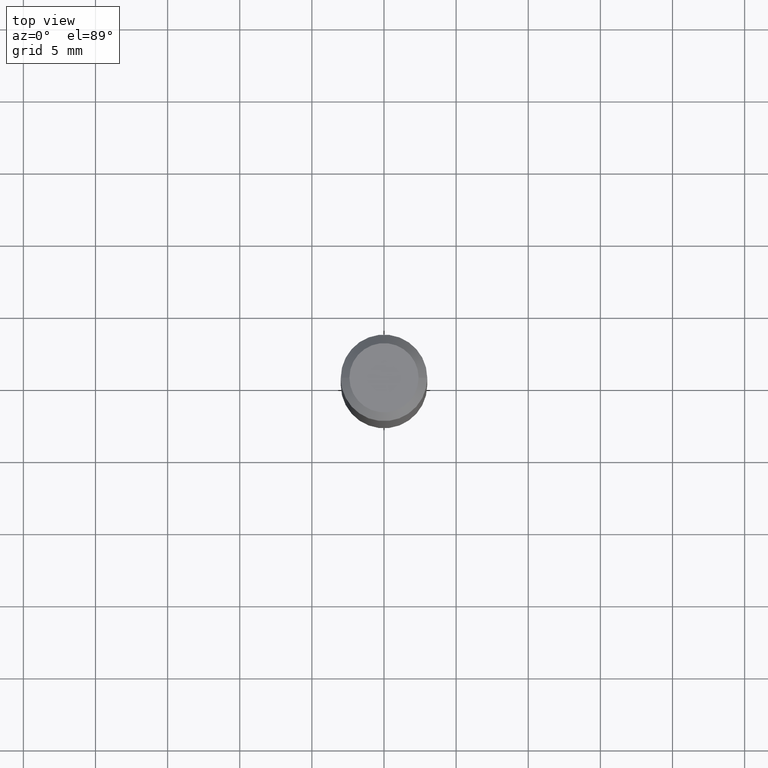
[diagram: clean part render]
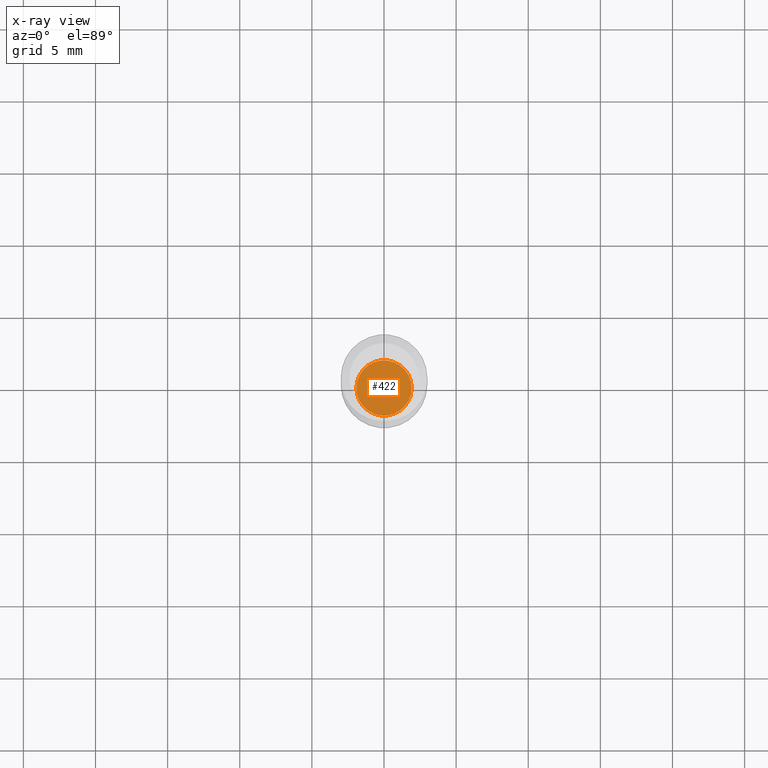
[diagram: x-ray — body ghosted, one internal face saturated and labeled with its STEP entity id]
A machine part, top view, then the same camera in x-ray: the body is ghosted and one INTERNAL B-rep face — a face not visible from any outside direction — is saturated and labeled: STEP entity #422.
In plain terms, the highlighted planar face has unit normal (-0, 0, 1).
Its self-contained STEP definition (entity closure, byte-faithful):
#8 = CARTESIAN_POINT ( 'NONE',  ( 3.975109544453939211E-29, -5.675402916289532927E-15, -1.625499999999999945 ) ) ;
#9 = EDGE_LOOP ( 'NONE', ( #117, #321 ) ) ;
#13 = CARTESIAN_POINT ( 'NONE',  ( 0.07549999999999998379, -6.202616598454845938E-15, -1.625499999999999945 ) ) ;
#31 = VERTEX_POINT ( 'NONE', #148 ) ;
#88 = PLANE ( 'NONE',  #178 ) ;
#98 = DIRECTION ( 'NONE',  ( 1.000000000000000000, -6.982962677686265922E-15, 4.876176775795935793E-29 ) ) ;
#117 = ORIENTED_EDGE ( 'NONE', *, *, #320, .F. ) ;
#148 = CARTESIAN_POINT ( 'NONE',  ( -0.07549999999999998379, -5.136293923616546793E-15, -1.625499999999999945 ) ) ;
#178 = AXIS2_PLACEMENT_3D ( 'NONE', #490, #244, #98 ) ;
#206 = DIRECTION ( 'NONE',  ( -2.445468806185136597E-29, 3.491481338843145583E-15, 1.000000000000000000 ) ) ;
#235 = FACE_OUTER_BOUND ( 'NONE', #9, .T. ) ;
#244 = DIRECTION ( 'NONE',  ( -2.438088387897960049E-29, 3.491481338843145188E-15, 1.000000000000000000 ) ) ;
#282 = DIRECTION ( 'NONE',  ( 1.000000000000000000, -6.982962677686263555E-15, 0.000000000000000000 ) ) ;
#296 = EDGE_CURVE ( 'NONE', #31, #395, #464, .T. ) ;
#320 = EDGE_CURVE ( 'NONE', #395, #31, #452, .T. ) ;
#321 = ORIENTED_EDGE ( 'NONE', *, *, #296, .F. ) ;
#353 = AXIS2_PLACEMENT_3D ( 'NONE', #8, #398, #282 ) ;
#395 = VERTEX_POINT ( 'NONE', #13 ) ;
#398 = DIRECTION ( 'NONE',  ( -2.445468806185136597E-29, 3.491481338843145583E-15, 1.000000000000000000 ) ) ;
#422 = ADVANCED_FACE ( 'NONE', ( #235 ), #88, .F. ) ;
#444 = DIRECTION ( 'NONE',  ( 1.000000000000000000, -6.982962677686263555E-15, 0.000000000000000000 ) ) ;
#452 = CIRCLE ( 'NONE', #353, 0.07549999999999998379 ) ;
#464 = CIRCLE ( 'NONE', #507, 0.07549999999999998379 ) ;
#476 = CARTESIAN_POINT ( 'NONE',  ( 3.975109544453939211E-29, -5.675402916289532927E-15, -1.625499999999999945 ) ) ;
#490 = CARTESIAN_POINT ( 'NONE',  ( 3.975109544453939211E-29, -5.675402916289532927E-15, -1.625499999999999945 ) ) ;
#507 = AXIS2_PLACEMENT_3D ( 'NONE', #476, #206, #444 ) ;